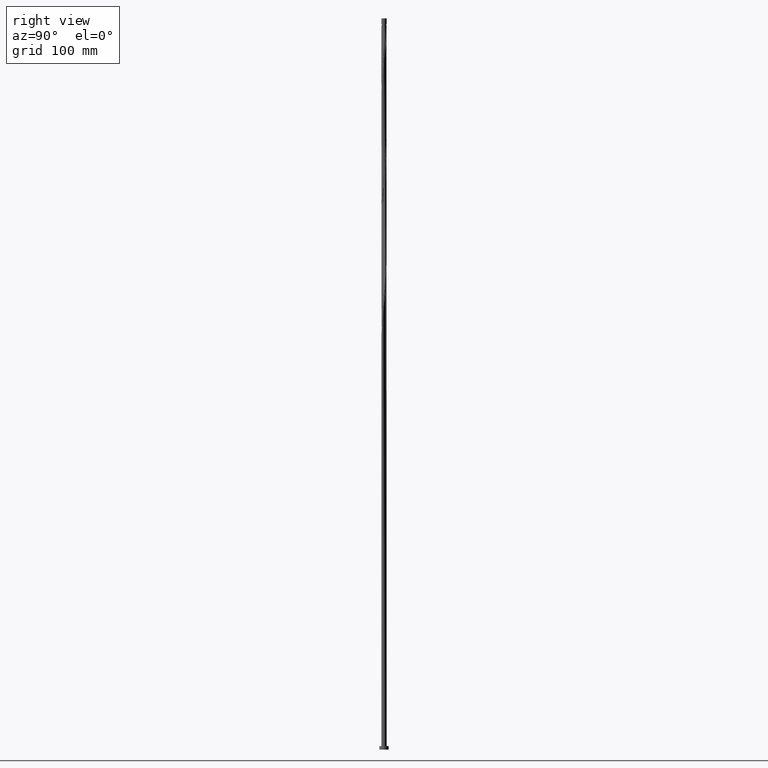
[diagram: clean part render]
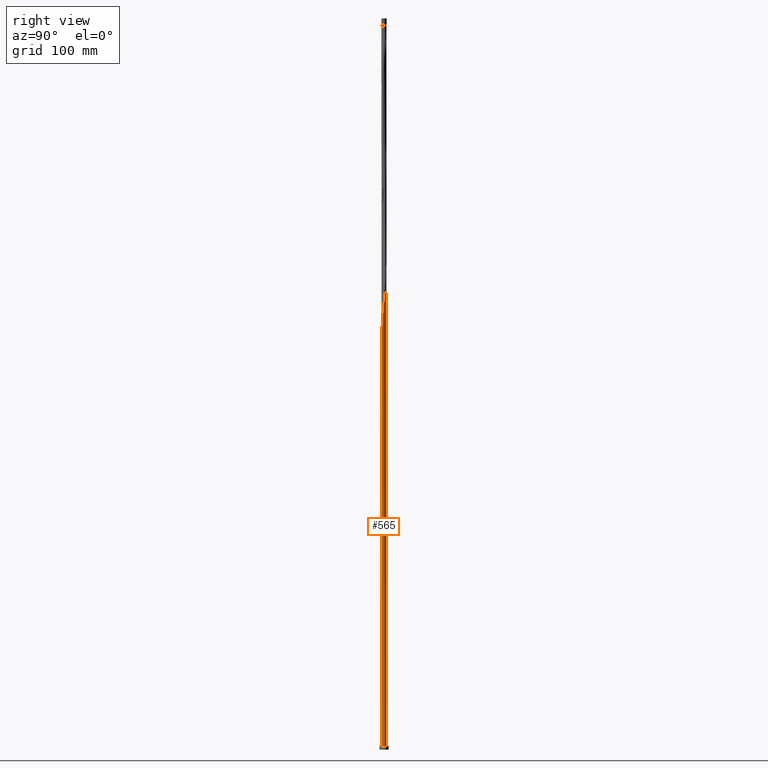
[diagram: same view with one face highlighted and labeled with its STEP entity id]
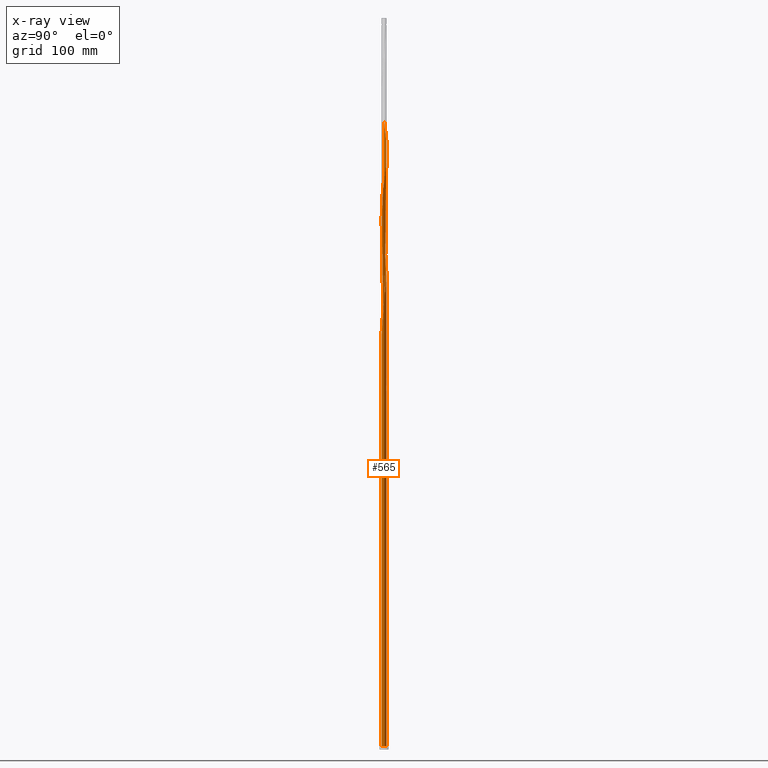
[diagram: x-ray of the same camera — body ghosted, the highlighted face saturated]
A machine part, right view. The second image highlights one B-rep face of the part: STEP entity #565.
The next image is the same camera in x-ray: the body ghosted, the highlighted face saturated — about 0% of this face is hidden behind the body in this view.
In plain terms, the highlighted cylindrical surface (bore or boss wall) has radius 2.25 mm, axis along (-0, -0, -1).
Its self-contained STEP definition (entity closure, byte-faithful):
#8 = CARTESIAN_POINT ( 'NONE',  ( 1.333559978401606561, 1.824167536203374684, 505.0614761835126956 ) ) ;
#9 = CARTESIAN_POINT ( 'NONE',  ( 2.154281222401762008, 0.6492860808666571781, 494.2526526541010981 ) ) ;
#18 = CARTESIAN_POINT ( 'NONE',  ( 2.119477124893632602, -0.7834450415858170702, 483.4438291246893300 ) ) ;
#21 = CARTESIAN_POINT ( 'NONE',  ( -0.2434210067343098860, 2.246489623749292175, 412.4144173599834176 ) ) ;
#27 = CARTESIAN_POINT ( 'NONE',  ( 1.038508983588739110, -2.006855377733598900, 471.0908879482185512 ) ) ;
#39 = CARTESIAN_POINT ( 'NONE',  ( 1.646043490777835405, 1.548066614393806217, 396.9732408893951288 ) ) ;
#54 = CARTESIAN_POINT ( 'NONE',  ( -0.3790287047740054649, -2.217845179663664901, 355.2820644188068968 ) ) ;
#55 = CARTESIAN_POINT ( 'NONE',  ( 2.259366552009624662, 0.03510270349881905450, 384.6202997129245205 ) ) ;
#59 = CARTESIAN_POINT ( 'NONE',  ( -2.249999999999998668, 0.1215449632783536377, 337.6528245497233343 ) ) ;
#65 = CARTESIAN_POINT ( 'NONE',  ( 1.541462835133259102, -1.639021759435471237, 370.7232408893951288 ) ) ;
#74 = CARTESIAN_POINT ( 'NONE',  ( 1.038508983588739110, -2.006855377733598900, 366.0908879482186080 ) ) ;
#85 = CARTESIAN_POINT ( 'NONE',  ( -1.489801734589718762, 1.686117075298588119, 324.3997114776303761 ) ) ;
#125 = CARTESIAN_POINT ( 'NONE',  ( -2.249999999999999556, -5.975497373633661011E-17, 338.5567437817360883 ) ) ;
#129 = CARTESIAN_POINT ( 'NONE',  ( -2.029454237716137754, 0.9715016711339328204, 534.3997114776303761 ) ) ;
#160 = AXIS2_PLACEMENT_3D ( 'NONE', #964, #1417, #1088 ) ;
#164 = CARTESIAN_POINT ( 'NONE',  ( -2.173411886343314503, 0.5820487714114765954, 432.4879467717480566 ) ) ;
#174 = CARTESIAN_POINT ( 'NONE',  ( 1.154611829395710165, 1.931158078309361148, 506.6055938305717063 ) ) ;
#175 = CARTESIAN_POINT ( 'NONE',  ( 2.029454237716137754, -0.9715016711339332645, 481.8997114776302624 ) ) ;
#184 = EDGE_CURVE ( 'NONE', #1595, #735, #974, .T. ) ;
#187 = CARTESIAN_POINT ( 'NONE',  ( -1.489801734589721427, -1.686117075298589896, 346.0173585364540259 ) ) ;
#196 = EDGE_CURVE ( 'NONE', #735, #1595, #753, .T. ) ;
#206 = CARTESIAN_POINT ( 'NONE',  ( -0.9756636803898135479, -2.038148620415348500, 350.6497114776303192 ) ) ;
#227 = CARTESIAN_POINT ( 'NONE',  ( -1.389585102633941638, 1.781859326285496481, 421.6791232423362317 ) ) ;
#230 = CARTESIAN_POINT ( 'NONE',  ( 0.6520676866616615941, -2.163510376250710632, 363.0026526541010981 ) ) ;
#236 = EDGE_CURVE ( 'NONE', #2025, #369, #1113, .T. ) ;
#260 = DIRECTION ( 'NONE',  ( -1.000000000000000000, 0.000000000000000000, 0.000000000000000000 ) ) ;
#267 = CARTESIAN_POINT ( 'NONE',  ( 0.4477443466979851849, -2.205000000000001847, 466.4585350070421441 ) ) ;
#279 = CARTESIAN_POINT ( 'NONE',  ( -0.1735150836260610785, -2.252967361478417807, 461.8261820658657371 ) ) ;
#288 = CARTESIAN_POINT ( 'NONE',  ( -1.541462835133258880, 1.639021759435471681, 528.2232408893951288 ) ) ;
#303 = CARTESIAN_POINT ( 'NONE',  ( -1.489801734589721427, -1.686117075298589896, 451.0173585364539122 ) ) ;
#315 = CARTESIAN_POINT ( 'NONE',  ( 1.541462835133259102, -1.639021759435471237, 475.7232408893952424 ) ) ;
#321 = CARTESIAN_POINT ( 'NONE',  ( -2.250000000000002665, 1.561098688861783863E-15, 541.8603262323480294 ) ) ;
#324 = CARTESIAN_POINT ( 'NONE',  ( -2.214446438109064275, -0.4496625277681736144, 440.2085350070422010 ) ) ;
#327 = CARTESIAN_POINT ( 'NONE',  ( 2.236906495059343580, 0.2423826156334961957, 491.1644173599833039 ) ) ;
#331 = CARTESIAN_POINT ( 'NONE',  ( -2.029454237716137754, 0.9715016711339328204, 429.3997114776303761 ) ) ;
#346 = CARTESIAN_POINT ( 'NONE',  ( -0.8452883351252001853, 2.085182876992154988, 312.0467703011597678 ) ) ;
#359 = CARTESIAN_POINT ( 'NONE',  ( -2.236906495059343580, -0.2423826156334958903, 333.6644173599832470 ) ) ;
#369 = VERTEX_POINT ( 'NONE', #1805 ) ;
#374 = CARTESIAN_POINT ( 'NONE',  ( -1.998294486490825417, -1.034078887348726772, 339.8408879482186080 ) ) ;
#378 = CARTESIAN_POINT ( 'NONE',  ( -2.249999999999999556, -5.975497373633661011E-17, 338.5567437817360883 ) ) ;
#383 = CARTESIAN_POINT ( 'NONE',  ( -1.646043490777835405, -1.548066614393806217, 344.4732408893950719 ) ) ;
#384 = CARTESIAN_POINT ( 'NONE',  ( 1.389585102633941194, -1.781859326285496481, 369.1791232423363454 ) ) ;
#394 = CARTESIAN_POINT ( 'NONE',  ( -0.1735150836260610785, -2.252967361478417807, 356.8261820658656802 ) ) ;
#426 = CARTESIAN_POINT ( 'NONE',  ( -2.154281222401758900, 0.6492860808666572892, 333.6644173599832470 ) ) ;
#429 = EDGE_LOOP ( 'NONE', ( #992, #2057, #1036, #1546, #521, #779, #1133, #827, #1810 ) ) ;
#459 = CARTESIAN_POINT ( 'NONE',  ( -0.4477443466979850739, 2.205000000000001847, 518.9585350070420873 ) ) ;
#472 = CARTESIAN_POINT ( 'NONE',  ( -0.7801030031558815470, -2.110435809132130025, 457.1938291246892732 ) ) ;
#491 = CARTESIAN_POINT ( 'NONE',  ( 1.693340567632576343, -1.496184192585447326, 477.2673585364539690 ) ) ;
#493 = CARTESIAN_POINT ( 'NONE',  ( -2.227346647792996404, 0.3806525012371374528, 434.0320644188068968 ) ) ;
#500 = CARTESIAN_POINT ( 'NONE',  ( 2.243356599901309423, -0.1727748988691601151, 488.0761820658657371 ) ) ;
#506 = CARTESIAN_POINT ( 'NONE',  ( -1.816385959085609736, 1.327871246633748337, 321.3114761835126956 ) ) ;
#508 = CARTESIAN_POINT ( 'NONE',  ( 2.259366552009624662, 0.03510270349881905450, 489.6202997129244068 ) ) ;
#521 = ORIENTED_EDGE ( 'NONE', *, *, #184, .T. ) ;
#523 = CARTESIAN_POINT ( 'NONE',  ( -2.250000000000003109, -0.1215449632783409672, 332.7642454643606129 ) ) ;
#537 = CARTESIAN_POINT ( 'NONE',  ( -2.250000000000002665, 1.561098688861784060E-15, 541.8603262323480294 ) ) ;
#543 = CARTESIAN_POINT ( 'NONE',  ( -2.094116006694460630, -0.8489096339651425183, 338.2967703011598815 ) ) ;
#553 = EDGE_CURVE ( 'NONE', #369, #735, #1319, .T. ) ;
#563 = CARTESIAN_POINT ( 'NONE',  ( 0.4477443466979856845, 2.204999999999997851, 308.9585350070421441 ) ) ;
#565 = ADVANCED_FACE ( 'NONE', ( #1450 ), #1992, .T. ) ;
#583 = CARTESIAN_POINT ( 'NONE',  ( 0.2434210067343096917, 2.246489623749289066, 310.5026526541010981 ) ) ;
#587 = DIRECTION ( 'NONE',  ( -0.000000000000000000, -0.000000000000000000, -1.000000000000000000 ) ) ;
#603 = CARTESIAN_POINT ( 'NONE',  ( -2.227346647792996404, 0.3806525012371374528, 539.0320644188067263 ) ) ;
#607 = CARTESIAN_POINT ( 'NONE',  ( -2.173411886343314503, 0.5820487714114765954, 537.4879467717479429 ) ) ;
#653 = CARTESIAN_POINT ( 'NONE',  ( 0.9756636803898141030, 2.038148620415348056, 508.1497114776304329 ) ) ;
#660 = CARTESIAN_POINT ( 'NONE',  ( -1.038508983588739110, 2.006855377733598900, 313.5908879482186080 ) ) ;
#671 = CARTESIAN_POINT ( 'NONE',  ( 1.489801734589721871, 1.686117075298589896, 398.5173585364537416 ) ) ;
#673 = CARTESIAN_POINT ( 'NONE',  ( 2.227346647792996404, -0.3806525012371373973, 381.5320644188069537 ) ) ;
#680 = CARTESIAN_POINT ( 'NONE',  ( 1.774258228532513249, 1.383657377563059176, 500.4291232423363454 ) ) ;
#693 = CARTESIAN_POINT ( 'NONE',  ( -2.154281222401761564, -0.6492860808666580663, 336.7526526541009844 ) ) ;
#694 = CARTESIAN_POINT ( 'NONE',  ( 1.693340567632576343, -1.496184192585447326, 372.2673585364538553 ) ) ;
#698 = CARTESIAN_POINT ( 'NONE',  ( -1.939431350538642462, 1.159558300682049570, 427.8555938305717632 ) ) ;
#704 = CARTESIAN_POINT ( 'NONE',  ( -2.250000000000003109, 2.539586383794290276E-16, 331.8603262323480863 ) ) ;
#714 = CARTESIAN_POINT ( 'NONE',  ( -1.333559978401605006, 1.824167536203372020, 322.8555938305715358 ) ) ;
#735 = VERTEX_POINT ( 'NONE', #1459 ) ;
#738 = LINE ( 'NONE', #1363, #1396 ) ;
#739 = CARTESIAN_POINT ( 'NONE',  ( -0.3790287047740054649, -2.217845179663664901, 460.2820644188068968 ) ) ;
#746 = VERTEX_POINT ( 'NONE', #537 ) ;
#749 = CARTESIAN_POINT ( 'NONE',  ( -0.9756636803898135479, -2.038148620415348500, 455.6497114776304329 ) ) ;
#753 = CIRCLE ( 'NONE', #160, 2.250000000000000000 ) ;
#755 = CARTESIAN_POINT ( 'NONE',  ( -1.646043490777832963, 1.548066614393804441, 325.9438291246891595 ) ) ;
#757 = CARTESIAN_POINT ( 'NONE',  ( -0.6520676866616614831, 2.163510376250710632, 520.5026526541010981 ) ) ;
#761 = CARTESIAN_POINT ( 'NONE',  ( -1.902472966287191536, -1.219248140732311469, 446.3850055952774483 ) ) ;
#769 = CARTESIAN_POINT ( 'NONE',  ( -1.939431350538642462, 1.159558300682049570, 322.8555938305715358 ) ) ;
#773 = CARTESIAN_POINT ( 'NONE',  ( -0.4477443466979850184, 2.205000000000001847, 308.9585350070421441 ) ) ;
#779 = ORIENTED_EDGE ( 'NONE', *, *, #553, .F. ) ;
#787 = CARTESIAN_POINT ( 'NONE',  ( -1.214047043111340152, 1.894357352009547801, 315.1350055952775620 ) ) ;
#803 = AXIS2_PLACEMENT_3D ( 'NONE', #1847, #1032, #260 ) ;
#807 = CARTESIAN_POINT ( 'NONE',  ( -1.389585102633941638, 1.781859326285496481, 316.6791232423362885 ) ) ;
#827 = ORIENTED_EDGE ( 'NONE', *, *, #1207, .T. ) ;
#828 = CARTESIAN_POINT ( 'NONE',  ( 1.333559978401606561, 1.824167536203374684, 400.0614761835127524 ) ) ;
#830 = CARTESIAN_POINT ( 'NONE',  ( -2.214446438109064275, -0.4496625277681736144, 335.2085350070422010 ) ) ;
#834 = EDGE_CURVE ( 'NONE', #1918, #904, #2049, .T. ) ;
#847 = CARTESIAN_POINT ( 'NONE',  ( -1.693340567632577010, 1.496184192585446882, 424.7673585364539122 ) ) ;
#861 = CARTESIAN_POINT ( 'NONE',  ( 0.03495296155412477151, 2.249728492613852104, 312.0467703011597109 ) ) ;
#871 = CARTESIAN_POINT ( 'NONE',  ( -2.236906495059340028, 0.2423826156334961679, 336.7526526541009275 ) ) ;
#879 = CARTESIAN_POINT ( 'NONE',  ( -2.214446438109060278, 0.4496625277681736699, 335.2085350070421441 ) ) ;
#884 = CARTESIAN_POINT ( 'NONE',  ( -0.5845423259219506562, -2.182722997848911994, 458.7379467717479997 ) ) ;
#889 = CARTESIAN_POINT ( 'NONE',  ( -0.7801030031558802147, 2.110435809132126472, 318.2232408893949582 ) ) ;
#891 = CARTESIAN_POINT ( 'NONE',  ( -1.214047043111340152, 1.894357352009547801, 525.1350055952774483 ) ) ;
#894 = CARTESIAN_POINT ( 'NONE',  ( -2.259366552009624662, -0.03510270349881827040, 437.1202997129245205 ) ) ;
#904 = VERTEX_POINT ( 'NONE', #563 ) ;
#911 = CARTESIAN_POINT ( 'NONE',  ( 2.250000000000000000, 0.000000000000000000, 3.000000000000000000 ) ) ;
#928 = CARTESIAN_POINT ( 'NONE',  ( -1.998294486490825417, -1.034078887348726772, 444.8408879482186649 ) ) ;
#964 = CARTESIAN_POINT ( 'NONE',  ( 0.000000000000000000, 0.000000000000000000, 3.000000000000000000 ) ) ;
#970 = CARTESIAN_POINT ( 'NONE',  ( -0.5845423259219506562, -2.182722997848911994, 353.7379467717480566 ) ) ;
#971 = CARTESIAN_POINT ( 'NONE',  ( 1.939431350538642684, -1.159558300682049348, 375.3555938305715358 ) ) ;
#974 = CIRCLE ( 'NONE', #1410, 2.250000000000000000 ) ;
#975 = DIRECTION ( 'NONE',  ( -1.000000000000000000, 0.000000000000000000, 0.000000000000000000 ) ) ;
#977 = CARTESIAN_POINT ( 'NONE',  ( 1.998294486490825417, 1.034078887348726772, 497.3408879482187217 ) ) ;
#982 = CARTESIAN_POINT ( 'NONE',  ( -1.154611829395710609, -1.931158078309360926, 349.1055938305715358 ) ) ;
#983 = CARTESIAN_POINT ( 'NONE',  ( 2.029454237716137754, -0.9715016711339332645, 376.8997114776304329 ) ) ;
#992 = ORIENTED_EDGE ( 'NONE', *, *, #1668, .F. ) ;
#1002 = CARTESIAN_POINT ( 'NONE',  ( -0.6520676866616614831, 2.163510376250710632, 415.5026526541010412 ) ) ;
#1006 = CARTESIAN_POINT ( 'NONE',  ( 0.03495296155412445233, -2.249728492613855657, 358.3702997129244636 ) ) ;
#1032 = DIRECTION ( 'NONE',  ( 0.000000000000000000, -0.000000000000000000, -1.000000000000000000 ) ) ;
#1034 = CARTESIAN_POINT ( 'NONE',  ( -0.2434210067343098860, 2.246489623749292175, 517.4144173599833039 ) ) ;
#1036 = ORIENTED_EDGE ( 'NONE', *, *, #553, .T. ) ;
#1038 = CARTESIAN_POINT ( 'NONE',  ( 0.2434210067343101358, -2.246489623749292175, 464.9144173599833039 ) ) ;
#1044 = CARTESIAN_POINT ( 'NONE',  ( -0.3790287047740045767, 2.217845179663661792, 315.1350055952775051 ) ) ;
#1055 = CARTESIAN_POINT ( 'NONE',  ( -1.998294486490822308, 1.034078887348725218, 330.5761820658655665 ) ) ;
#1057 = CARTESIAN_POINT ( 'NONE',  ( -1.693340567632577010, 1.496184192585446882, 529.7673585364539122 ) ) ;
#1061 = CARTESIAN_POINT ( 'NONE',  ( -2.094116006694460630, -0.8489096339651425183, 443.2967703011597678 ) ) ;
#1077 = DIRECTION ( 'NONE',  ( 1.000000000000000000, 0.000000000000000000, 0.000000000000000000 ) ) ;
#1080 = CARTESIAN_POINT ( 'NONE',  ( 0.03495296155412445233, -2.249728492613855657, 463.3702997129246342 ) ) ;
#1088 = DIRECTION ( 'NONE',  ( 1.000000000000000000, 0.000000000000000000, 0.000000000000000000 ) ) ;
#1094 = CARTESIAN_POINT ( 'NONE',  ( -0.8452883351252001853, 2.085182876992154988, 417.0467703011598246 ) ) ;
#1109 = CARTESIAN_POINT ( 'NONE',  ( -0.4477443466979850739, 2.205000000000001847, 308.9585350070421441 ) ) ;
#1111 = CARTESIAN_POINT ( 'NONE',  ( 0.5845423259219498791, 2.182722997848911994, 511.2379467717480566 ) ) ;
#1113 =( BOUNDED_CURVE ( )  B_SPLINE_CURVE ( 2, ( #1109, #1762, #346, #660, #787, #807, #1439, #1602, #506, #769, #1310, #1479, #1626, #1148, #1489, #1961, #704 ),
 .UNSPECIFIED., .F., .T. ) 
 B_SPLINE_CURVE_WITH_KNOTS ( ( 3, 2, 2, 2, 2, 2, 2, 2, 3 ),
 ( 0.000000000000000000, 0.007352941176470562112, 0.01470588235294112422, 0.02205882352941179736, 0.02941176470588235947, 0.03676470588235292158, 0.04411764705882348370, 0.05147058823529414989, 0.05452935731629016125 ),
 .UNSPECIFIED. ) 
 CURVE ( )  GEOMETRIC_REPRESENTATION_ITEM ( )  RATIONAL_B_SPLINE_CURVE ( ( 0.9090909090910310741, 0.9052128875410618836, 0.9090909090910310741, 0.9052128875410618836, 0.9090909090910310741, 0.9052128875410618836, 0.9090909090910310741, 0.9052128875410618836, 0.9090909090910310741, 0.9052128875410618836, 0.9090909090910310741, 0.9052128875410618836, 0.9090909090910310741, 0.9052128875410618836, 0.9090909090910310741, 0.9074776808429334540, 0.9072066346053926367 ) ) 
 REPRESENTATION_ITEM ( '' )  );
#1121 = CARTESIAN_POINT ( 'NONE',  ( 0.3790287047740056869, 2.217845179663664901, 512.7820644188069537 ) ) ;
#1133 = ORIENTED_EDGE ( 'NONE', *, *, #236, .F. ) ;
#1134 = CARTESIAN_POINT ( 'NONE',  ( 1.774258228532513249, 1.383657377563059176, 395.4291232423362317 ) ) ;
#1137 = CARTESIAN_POINT ( 'NONE',  ( 2.214446438109064275, 0.4496625277681733923, 387.7085350070421441 ) ) ;
#1142 = CARTESIAN_POINT ( 'NONE',  ( 0.000000000000000000, 0.000000000000000000, 630.0000000000000000 ) ) ;
#1148 = CARTESIAN_POINT ( 'NONE',  ( -2.227346647792996404, 0.3806525012371374528, 329.0320644188068400 ) ) ;
#1154 = CARTESIAN_POINT ( 'NONE',  ( -1.902472966287191536, -1.219248140732311469, 341.3850055952776188 ) ) ;
#1156 = CARTESIAN_POINT ( 'NONE',  ( 2.119477124893632602, -0.7834450415858170702, 378.4438291246892732 ) ) ;
#1161 = CARTESIAN_POINT ( 'NONE',  ( -2.250000000000000000, 0.000000000000000000, 630.0000000000000000 ) ) ;
#1179 = CARTESIAN_POINT ( 'NONE',  ( -0.9756636803898116606, 2.038148620415345391, 319.7673585364538553 ) ) ;
#1207 = EDGE_CURVE ( 'NONE', #2025, #904, #1355, .T. ) ;
#1212 = CARTESIAN_POINT ( 'NONE',  ( -1.816385959085609736, 1.327871246633748337, 531.3114761835126956 ) ) ;
#1269 = CARTESIAN_POINT ( 'NONE',  ( 1.214047043111340374, -1.894357352009547135, 472.6350055952775051 ) ) ;
#1279 = CARTESIAN_POINT ( 'NONE',  ( -2.250000000000003109, 2.539586383794290276E-16, 331.8603262323480863 ) ) ;
#1280 = CARTESIAN_POINT ( 'NONE',  ( 1.214047043111340374, -1.894357352009547135, 367.6350055952773914 ) ) ;
#1289 = CARTESIAN_POINT ( 'NONE',  ( 0.5845423259219498791, 2.182722997848911994, 406.2379467717479429 ) ) ;
#1292 = AXIS2_PLACEMENT_3D ( 'NONE', #1142, #1471, #975 ) ;
#1297 = CARTESIAN_POINT ( 'NONE',  ( 1.646043490777835405, 1.548066614393806217, 501.9732408893951288 ) ) ;
#1301 = CARTESIAN_POINT ( 'NONE',  ( 0.7801030031558827682, 2.110435809132129137, 404.6938291246892732 ) ) ;
#1306 = CARTESIAN_POINT ( 'NONE',  ( 2.154281222401762008, 0.6492860808666571781, 389.2526526541009275 ) ) ;
#1310 = CARTESIAN_POINT ( 'NONE',  ( -2.029454237716137754, 0.9715016711339328204, 324.3997114776303761 ) ) ;
#1315 = CARTESIAN_POINT ( 'NONE',  ( 1.816385959085609736, -1.327871246633748337, 373.8114761835127524 ) ) ;
#1319 = LINE ( 'NONE', #1161, #1393 ) ;
#1355 = CIRCLE ( 'NONE', #803, 2.250000000000000000 ) ;
#1358 = CARTESIAN_POINT ( 'NONE',  ( -1.038508983588739110, 2.006855377733598900, 523.5908879482187785 ) ) ;
#1363 = CARTESIAN_POINT ( 'NONE',  ( -2.250000000000000000, 0.000000000000000000, 630.0000000000000000 ) ) ;
#1371 = CARTESIAN_POINT ( 'NONE',  ( -1.389585102633941638, 1.781859326285496481, 526.6791232423361180 ) ) ;
#1380 = CARTESIAN_POINT ( 'NONE',  ( -2.119477124893633047, 0.7834450415858167371, 535.9438291246891595 ) ) ;
#1383 = CARTESIAN_POINT ( 'NONE',  ( -1.774258228532513471, -1.383657377563058510, 447.9291232423363454 ) ) ;
#1393 = VECTOR ( 'NONE', #1819, 1000.000000000000000 ) ;
#1396 = VECTOR ( 'NONE', #587, 1000.000000000000000 ) ;
#1410 = AXIS2_PLACEMENT_3D ( 'NONE', #1430, #1927, #1077 ) ;
#1411 = CARTESIAN_POINT ( 'NONE',  ( 0.3790287047740056869, 2.217845179663664901, 407.7820644188068968 ) ) ;
#1417 = DIRECTION ( 'NONE',  ( 0.000000000000000000, 0.000000000000000000, 1.000000000000000000 ) ) ;
#1420 = CARTESIAN_POINT ( 'NONE',  ( 2.227346647792996404, -0.3806525012371373973, 486.5320644188068400 ) ) ;
#1430 = CARTESIAN_POINT ( 'NONE',  ( 0.000000000000000000, 0.000000000000000000, 3.000000000000000000 ) ) ;
#1439 = CARTESIAN_POINT ( 'NONE',  ( -1.541462835133258880, 1.639021759435471681, 318.2232408893950719 ) ) ;
#1450 = FACE_OUTER_BOUND ( 'NONE', #429, .T. ) ;
#1459 = CARTESIAN_POINT ( 'NONE',  ( -2.250000000000000000, 0.000000000000000000, 3.000000000000000000 ) ) ;
#1463 = CARTESIAN_POINT ( 'NONE',  ( -0.7801030031558815470, -2.110435809132130025, 352.1938291246891595 ) ) ;
#1464 = CARTESIAN_POINT ( 'NONE',  ( 1.998294486490825417, 1.034078887348726772, 392.3408879482187785 ) ) ;
#1471 = DIRECTION ( 'NONE',  ( -0.000000000000000000, -0.000000000000000000, -1.000000000000000000 ) ) ;
#1479 = CARTESIAN_POINT ( 'NONE',  ( -2.119477124893633047, 0.7834450415858167371, 325.9438291246892163 ) ) ;
#1484 = CARTESIAN_POINT ( 'NONE',  ( 0.8452883351251998523, -2.085182876992154988, 364.5467703011597678 ) ) ;
#1489 = CARTESIAN_POINT ( 'NONE',  ( -2.243356599901309423, 0.1727748988691593657, 330.5761820658657939 ) ) ;
#1499 = CARTESIAN_POINT ( 'NONE',  ( -2.094116006694457077, 0.8489096339651415191, 332.1202997129245773 ) ) ;
#1520 = EDGE_CURVE ( 'NONE', #369, #746, #1535, .T. ) ;
#1521 = CARTESIAN_POINT ( 'NONE',  ( -0.5845423259219491019, 2.182722997848908886, 316.6791232423362317 ) ) ;
#1533 = CARTESIAN_POINT ( 'NONE',  ( -0.1735150836260599405, 2.252967361478413810, 313.5908879482185512 ) ) ;
#1535 =( BOUNDED_CURVE ( )  B_SPLINE_CURVE ( 2, ( #1279, #523, #359, #830, #693, #543, #374, #1154, #1813, #383, #187, #1633, #982, #206, #1463, #970, #54, #394, #1006, #1647, #1969, #230, #1484, #74, #1280, #384, #65, #694, #1315, #971, #983, #1156, #1608, #673, #1816, #55, #1955, #1137, #1306, #1621, #1464, #1775, #1134, #39, #671, #828, #1788, #1606, #1301, #1289, #1411, #1746, #1912, #21, #1809, #1002, #1094, #1643, #1629, #227, #2071, #847, #1937, #698, #331, #1580, #164, #493, #1756, #894, #1983, #324, #1548, #1061, #928, #761, #1383, #2047, #303, #1897, #1539, #749, #472, #884, #739, #279, #1080, #1038, #267, #2027, #1863, #27, #1269, #1932, #315, #491, #1589, #1908, #175, #18, #1943, #1420, #500, #508, #327, #1577, #9, #1588, #977, #1964, #680, #1297, #1752, #8, #174, #653, #1931, #1111, #1121, #1773, #1764, #1034, #459, #757, #1689, #1358, #891, #1371, #288, #1057, #1212, #1545, #129, #1380, #607, #603, #1582, #1902, #321 ),
 .UNSPECIFIED., .F., .T. ) 
 B_SPLINE_CURVE_WITH_KNOTS ( ( 3, 2, 2, 2, 2, 2, 2, 2, 2, 2, 2, 2, 2, 2, 2, 2, 2, 2, 2, 2, 2, 2, 2, 2, 2, 2, 2, 2, 2, 2, 2, 2, 2, 2, 2, 2, 2, 2, 2, 2, 2, 2, 2, 2, 2, 2, 2, 2, 2, 2, 2, 2, 2, 2, 2, 2, 2, 2, 2, 2, 2, 2, 2, 2, 2, 2, 2, 2, 2, 3 ),
 ( 0.05452935731629016125, 0.05882352941176471894, 0.06617647058823528106, 0.07352941176470584317, 0.08088235294117651630, 0.08823529411764707842, 0.09558823529411764053, 0.1029411764705882026, 0.1102941176470588758, 0.1176470588235294379, 0.1250000000000000000, 0.1323529411764705621, 0.1397058823529411242, 0.1470588235294117974, 0.1544117647058823595, 0.1617647058823529216, 0.1691176470588234837, 0.1764705882352941568, 0.1838235294117647189, 0.1911764705882352811, 0.1985294117647058432, 0.2058823529411765163, 0.2132352941176470784, 0.2205882352941176405, 0.2279411764705882026, 0.2352941176470588758, 0.2426470588235294379, 0.2500000000000000000, 0.2573529411764705621, 0.2647058823529411242, 0.2720588235294117974, 0.2794117647058823595, 0.2867647058823529216, 0.2941176470588234837, 0.3014705882352941568, 0.3088235294117647189, 0.3161764705882352811, 0.3235294117647058432, 0.3308823529411765163, 0.3382352941176470784, 0.3455882352941176405, 0.3529411764705882026, 0.3602941176470588758, 0.3676470588235294379, 0.3750000000000000000, 0.3823529411764705621, 0.3897058823529411242, 0.3970588235294117974, 0.4044117647058823595, 0.4117647058823529216, 0.4191176470588234837, 0.4264705882352941568, 0.4338235294117647189, 0.4411764705882352811, 0.4485294117647058432, 0.4558823529411765163, 0.4632352941176470784, 0.4705882352941176405, 0.4779411764705882026, 0.4852941176470588758, 0.4926470588235294379, 0.5000000000000000000, 0.5073529411764705621, 0.5147058823529411242, 0.5220588235294116863, 0.5294117647058823595, 0.5367647058823529216, 0.5441176470588235947, 0.5514705882352941568, 0.5545293573162902723 ),
 .UNSPECIFIED. ) 
 CURVE ( )  GEOMETRIC_REPRESENTATION_ITEM ( )  RATIONAL_B_SPLINE_CURVE ( ( 0.9072066346053926367, 0.9068261157891595037, 0.9090909090910310741, 0.9052128875410618836, 0.9090909090910310741, 0.9052128875410618836, 0.9090909090910310741, 0.9052128875410618836, 0.9090909090910310741, 0.9052128875410618836, 0.9090909090910310741, 0.9052128875410618836, 0.9090909090910310741, 0.9052128875410618836, 0.9090909090910310741, 0.9052128875410618836, 0.9090909090910310741, 0.9052128875410618836, 0.9090909090910310741, 0.9052128875410618836, 0.9090909090910310741, 0.9052128875410618836, 0.9090909090910310741, 0.9052128875410618836, 0.9090909090910310741, 0.9052128875410618836, 0.9090909090910310741, 0.9052128875410618836, 0.9090909090910310741, 0.9052128875410618836, 0.9090909090910310741, 0.9052128875410618836, 0.9090909090910310741, 0.9052128875410618836, 0.9090909090910310741, 0.9052128875410618836, 0.9090909090910310741, 0.9052128875410618836, 0.9090909090910310741, 0.9052128875410618836, 0.9090909090910310741, 0.9052128875410618836, 0.9090909090910310741, 0.9052128875410618836, 0.9090909090910310741, 0.9052128875410618836, 0.9090909090910310741, 0.9052128875410618836, 0.9090909090910310741, 0.9052128875410618836, 0.9090909090910310741, 0.9052128875410618836, 0.9090909090910310741, 0.9052128875410618836, 0.9090909090910310741, 0.9052128875410618836, 0.9090909090910310741, 0.9052128875410618836, 0.9090909090910310741, 0.9052128875410618836, 0.9090909090910310741, 0.9052128875410618836, 0.9090909090910310741, 0.9052128875410618836, 0.9090909090910310741, 0.9052128875410618836, 0.9090909090910310741, 0.9052128875410618836, 0.9090909090910310741, 0.9052128875410618836, 0.9090909090910310741, 0.9052128875410618836, 0.9090909090910310741, 0.9052128875410618836, 0.9090909090910310741, 0.9052128875410618836, 0.9090909090910310741, 0.9052128875410618836, 0.9090909090910310741, 0.9052128875410618836, 0.9090909090910310741, 0.9052128875410618836, 0.9090909090910310741, 0.9052128875410618836, 0.9090909090910310741, 0.9052128875410618836, 0.9090909090910310741, 0.9052128875410618836, 0.9090909090910310741, 0.9052128875410618836, 0.9090909090910310741, 0.9052128875410618836, 0.9090909090910310741, 0.9052128875410618836, 0.9090909090910310741, 0.9052128875410618836, 0.9090909090910310741, 0.9052128875410618836, 0.9090909090910310741, 0.9052128875410618836, 0.9090909090910310741, 0.9052128875410618836, 0.9090909090910310741, 0.9052128875410618836, 0.9090909090910310741, 0.9052128875410618836, 0.9090909090910310741, 0.9052128875410618836, 0.9090909090910310741, 0.9052128875410618836, 0.9090909090910310741, 0.9052128875410618836, 0.9090909090910310741, 0.9052128875410618836, 0.9090909090910310741, 0.9052128875410618836, 0.9090909090910310741, 0.9052128875410618836, 0.9090909090910310741, 0.9052128875410618836, 0.9090909090910310741, 0.9052128875410618836, 0.9090909090910310741, 0.9052128875410618836, 0.9090909090910310741, 0.9052128875410618836, 0.9090909090910310741, 0.9052128875410618836, 0.9090909090910310741, 0.9052128875410618836, 0.9090909090910310741, 0.9052128875410618836, 0.9090909090910310741, 0.9052128875410618836, 0.9090909090910310741, 0.9052128875410618836, 0.9090909090910310741, 0.9074776808429334540, 0.9072066346053926367 ) ) 
 REPRESENTATION_ITEM ( '' )  );
#1539 = CARTESIAN_POINT ( 'NONE',  ( -1.154611829395710609, -1.931158078309360926, 454.1055938305716495 ) ) ;
#1545 = CARTESIAN_POINT ( 'NONE',  ( -1.939431350538642462, 1.159558300682049570, 532.8555938305717063 ) ) ;
#1546 = ORIENTED_EDGE ( 'NONE', *, *, #196, .T. ) ;
#1548 = CARTESIAN_POINT ( 'NONE',  ( -2.154281222401761564, -0.6492860808666580663, 441.7526526541010412 ) ) ;
#1577 = CARTESIAN_POINT ( 'NONE',  ( 2.214446438109064275, 0.4496625277681733923, 492.7085350070421441 ) ) ;
#1580 = CARTESIAN_POINT ( 'NONE',  ( -2.119477124893633047, 0.7834450415858167371, 430.9438291246892732 ) ) ;
#1582 = CARTESIAN_POINT ( 'NONE',  ( -2.243356599901309423, 0.1727748988691593657, 540.5761820658656234 ) ) ;
#1588 = CARTESIAN_POINT ( 'NONE',  ( 2.094116006694460630, 0.8489096339651428513, 495.7967703011598815 ) ) ;
#1589 = CARTESIAN_POINT ( 'NONE',  ( 1.816385959085609736, -1.327871246633748337, 478.8114761835128093 ) ) ;
#1595 = VERTEX_POINT ( 'NONE', #911 ) ;
#1602 = CARTESIAN_POINT ( 'NONE',  ( -1.693340567632577010, 1.496184192585446882, 319.7673585364539690 ) ) ;
#1606 = CARTESIAN_POINT ( 'NONE',  ( 0.9756636803898141030, 2.038148620415348056, 403.1497114776303192 ) ) ;
#1608 = CARTESIAN_POINT ( 'NONE',  ( 2.173411886343314503, -0.5820487714114760402, 379.9879467717480566 ) ) ;
#1621 = CARTESIAN_POINT ( 'NONE',  ( 2.094116006694460630, 0.8489096339651428513, 390.7967703011598246 ) ) ;
#1626 = CARTESIAN_POINT ( 'NONE',  ( -2.173411886343314503, 0.5820487714114765954, 327.4879467717479997 ) ) ;
#1629 = CARTESIAN_POINT ( 'NONE',  ( -1.214047043111340152, 1.894357352009547801, 420.1350055952774483 ) ) ;
#1633 = CARTESIAN_POINT ( 'NONE',  ( -1.333559978401607671, -1.824167536203374684, 347.5614761835127524 ) ) ;
#1643 = CARTESIAN_POINT ( 'NONE',  ( -1.038508983588739110, 2.006855377733598900, 418.5908879482186080 ) ) ;
#1647 = CARTESIAN_POINT ( 'NONE',  ( 0.2434210067343101358, -2.246489623749292175, 359.9144173599833607 ) ) ;
#1668 = EDGE_CURVE ( 'NONE', #746, #1918, #738, .T. ) ;
#1687 = CARTESIAN_POINT ( 'NONE',  ( -1.154611829395708167, 1.931158078309358483, 321.3114761835128093 ) ) ;
#1689 = CARTESIAN_POINT ( 'NONE',  ( -0.8452883351252001853, 2.085182876992154988, 522.0467703011598815 ) ) ;
#1697 = CARTESIAN_POINT ( 'NONE',  ( 0.4477443466979856290, 2.204999999999997407, 308.9585350070421441 ) ) ;
#1746 = CARTESIAN_POINT ( 'NONE',  ( 0.1735150836260613560, 2.252967361478417807, 409.3261820658656802 ) ) ;
#1752 = CARTESIAN_POINT ( 'NONE',  ( 1.489801734589721871, 1.686117075298589896, 503.5173585364539690 ) ) ;
#1756 = CARTESIAN_POINT ( 'NONE',  ( -2.243356599901309423, 0.1727748988691593657, 435.5761820658656234 ) ) ;
#1762 = CARTESIAN_POINT ( 'NONE',  ( -0.6520676866616614831, 2.163510376250710632, 310.5026526541010981 ) ) ;
#1764 = CARTESIAN_POINT ( 'NONE',  ( -0.03495296155412509070, 2.249728492613855213, 515.8702997129245205 ) ) ;
#1773 = CARTESIAN_POINT ( 'NONE',  ( 0.1735150836260613560, 2.252967361478417807, 514.3261820658656234 ) ) ;
#1775 = CARTESIAN_POINT ( 'NONE',  ( 1.902472966287192202, 1.219248140732310803, 393.8850055952774483 ) ) ;
#1788 = CARTESIAN_POINT ( 'NONE',  ( 1.154611829395710165, 1.931158078309361148, 401.6055938305715927 ) ) ;
#1805 = CARTESIAN_POINT ( 'NONE',  ( -2.250000000000003109, 2.539586383794289783E-16, 331.8603262323480294 ) ) ;
#1809 = CARTESIAN_POINT ( 'NONE',  ( -0.4477443466979850739, 2.205000000000001847, 413.9585350070422010 ) ) ;
#1810 = ORIENTED_EDGE ( 'NONE', *, *, #834, .F. ) ;
#1813 = CARTESIAN_POINT ( 'NONE',  ( -1.774258228532513471, -1.383657377563058510, 342.9291232423361748 ) ) ;
#1816 = CARTESIAN_POINT ( 'NONE',  ( 2.243356599901309423, -0.1727748988691601151, 383.0761820658656802 ) ) ;
#1819 = DIRECTION ( 'NONE',  ( -0.000000000000000000, -0.000000000000000000, -1.000000000000000000 ) ) ;
#1847 = CARTESIAN_POINT ( 'NONE',  ( 0.000000000000000000, 0.000000000000000000, 308.9585350070422010 ) ) ;
#1863 = CARTESIAN_POINT ( 'NONE',  ( 0.8452883351251998523, -2.085182876992154988, 469.5467703011598246 ) ) ;
#1897 = CARTESIAN_POINT ( 'NONE',  ( -1.333559978401607671, -1.824167536203374684, 452.5614761835127524 ) ) ;
#1902 = CARTESIAN_POINT ( 'NONE',  ( -2.250000000000002665, 0.08651517274728685869, 541.2169204802883087 ) ) ;
#1908 = CARTESIAN_POINT ( 'NONE',  ( 1.939431350538642684, -1.159558300682049348, 480.3555938305716495 ) ) ;
#1912 = CARTESIAN_POINT ( 'NONE',  ( -0.03495296155412509070, 2.249728492613855213, 410.8702997129245205 ) ) ;
#1918 = VERTEX_POINT ( 'NONE', #125 ) ;
#1927 = DIRECTION ( 'NONE',  ( 0.000000000000000000, 0.000000000000000000, 1.000000000000000000 ) ) ;
#1931 = CARTESIAN_POINT ( 'NONE',  ( 0.7801030031558827682, 2.110435809132129137, 509.6938291246892732 ) ) ;
#1932 = CARTESIAN_POINT ( 'NONE',  ( 1.389585102633941194, -1.781859326285496481, 474.1791232423362317 ) ) ;
#1937 = CARTESIAN_POINT ( 'NONE',  ( -1.816385959085609736, 1.327871246633748337, 426.3114761835128093 ) ) ;
#1943 = CARTESIAN_POINT ( 'NONE',  ( 2.173411886343314503, -0.5820487714114760402, 484.9879467717482271 ) ) ;
#1955 = CARTESIAN_POINT ( 'NONE',  ( 2.236906495059343580, 0.2423826156334961957, 386.1644173599833607 ) ) ;
#1961 = CARTESIAN_POINT ( 'NONE',  ( -2.250000000000002665, 0.08651517274729002283, 331.2169204802883655 ) ) ;
#1964 = CARTESIAN_POINT ( 'NONE',  ( 1.902472966287192202, 1.219248140732310803, 498.8850055952775051 ) ) ;
#1969 = CARTESIAN_POINT ( 'NONE',  ( 0.4477443466979851849, -2.205000000000001847, 361.4585350070422010 ) ) ;
#1983 = CARTESIAN_POINT ( 'NONE',  ( -2.236906495059343580, -0.2423826156334958903, 438.6644173599834176 ) ) ;
#1992 = CYLINDRICAL_SURFACE ( 'NONE', #1292, 2.250000000000000000 ) ;
#2023 = CARTESIAN_POINT ( 'NONE',  ( -1.774258228532510806, 1.383657377563056734, 327.4879467717481134 ) ) ;
#2025 = VERTEX_POINT ( 'NONE', #773 ) ;
#2027 = CARTESIAN_POINT ( 'NONE',  ( 0.6520676866616615941, -2.163510376250710632, 468.0026526541010412 ) ) ;
#2034 = CARTESIAN_POINT ( 'NONE',  ( -1.902472966287188205, 1.219248140732309915, 329.0320644188067831 ) ) ;
#2047 = CARTESIAN_POINT ( 'NONE',  ( -1.646043490777835405, -1.548066614393806217, 449.4732408893951856 ) ) ;
#2049 =( BOUNDED_CURVE ( )  B_SPLINE_CURVE ( 2, ( #378, #59, #871, #879, #426, #1499, #1055, #2034, #2023, #755, #85, #714, #1687, #1179, #889, #1521, #1044, #1533, #861, #583, #1697 ),
 .UNSPECIFIED., .F., .T. ) 
 B_SPLINE_CURVE_WITH_KNOTS ( ( 3, 2, 2, 2, 2, 2, 2, 2, 2, 2, 3 ),
 ( 0.9295293573162906053, 0.9338235294117647189, 0.9411764705882352811, 0.9485294117647058432, 0.9558823529411765163, 0.9632352941176470784, 0.9705882352941176405, 0.9779411764705882026, 0.9852941176470588758, 0.9926470588235294379, 1.000000000000000000 ),
 .UNSPECIFIED. ) 
 CURVE ( )  GEOMETRIC_REPRESENTATION_ITEM ( )  RATIONAL_B_SPLINE_CURVE ( ( 0.9072066346053867525, 0.9068261157891539526, 0.9090909090910254120, 0.9052128875410561104, 0.9090909090910254120, 0.9052128875410561104, 0.9090909090910254120, 0.9052128875410561104, 0.9090909090910254120, 0.9052128875410561104, 0.9090909090910254120, 0.9052128875410561104, 0.9090909090910254120, 0.9052128875410561104, 0.9090909090910254120, 0.9052128875410561104, 0.9090909090910254120, 0.9052128875410561104, 0.9090909090910254120, 0.9052128875410561104, 0.9090909090910254120 ) ) 
 REPRESENTATION_ITEM ( '' )  );
#2057 = ORIENTED_EDGE ( 'NONE', *, *, #1520, .F. ) ;
#2071 = CARTESIAN_POINT ( 'NONE',  ( -1.541462835133258880, 1.639021759435471681, 423.2232408893951856 ) ) ;